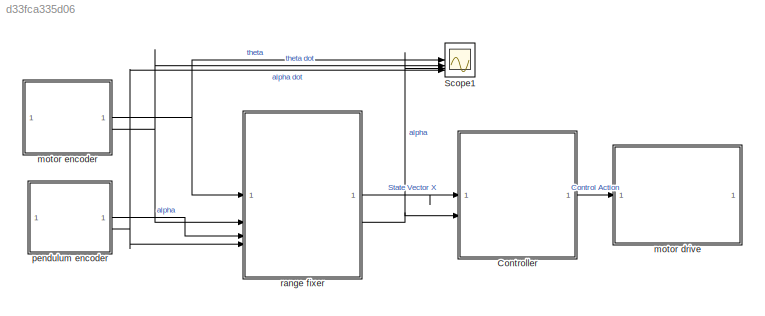
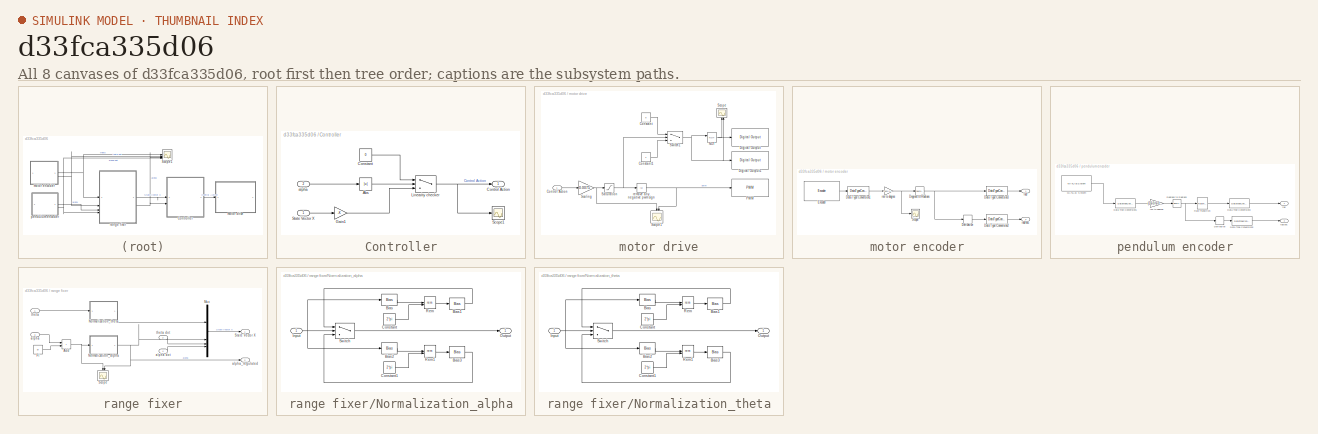
[diagram: thumbnail index - all 8 canvases of the model, root first then tree order]
MODEL slx_d33fca335d06
KIND model
CONFIG AbsTol = auto
CONFIG EnableMultiTasking = on
CONFIG FixedStep = 0.01
CONFIG MaxStep = auto
CONFIG MinStep = auto
CONFIG RelTol = 1e-3
CONFIG SampleTimeConstraint = Unconstrained
CONFIG SolverName = ode3
CONFIG StartTime = 0.0
CONFIG StopTime = inf
BLOCK [SubSystem] Controller
BLOCK [Abs] Controller/Abs
  SaturateOnIntegerOverflow = off
BLOCK [Constant] Controller/Constant
  Value = 0
BLOCK [Outport] Controller/Control Action 
BLOCK [Gain] Controller/Gain1
  Gain = -K
  Multiplication = Matrix(K*u)
BLOCK [Switch] Controller/Linearity checker
  Criteria = u2 > Threshold
  InputSameDT = off
  SaturateOnIntegerOverflow = off
  Threshold = pi/7
BLOCK [Scope] Controller/Scope1
  Floating = off
  NumInputPorts = 1
  ScopeSpecificationString = Simulink.scopes.TimeScopeBlockCfg('CurrentConfiguration', extmgr.ConfigurationSet(extmgr.Configuration('Core','General UI',true),extmgr.Configuration('Core','Source UI',true),extmgr.Configuration('Sources','WiredSimulink',true,'DataLoggingVariableName','ScopeData2'),extmgr.Configuration('Visuals','Time Domain',true,'SerializedDisplays',{struct('MinYLimReal','-1.00000','MaxYLimReal','1.00000','YLab...<+1412ch>
BLOCK [Inport] Controller/State Vector X
BLOCK [Inport] Controller/alpha
  Port = 2
BLOCK [Scope] Scope1
  Floating = off
  NumInputPorts = 4
  ScopeSpecificationString = Simulink.scopes.TimeScopeBlockCfg('CurrentConfiguration', extmgr.ConfigurationSet(extmgr.Configuration('Core','General UI',true),extmgr.Configuration('Core','Source UI',true),extmgr.Configuration('Sources','WiredSimulink',true,'DataLoggingVariableName','ScopeData1'),extmgr.Configuration('Visuals','Time Domain',true,'SerializedDisplays',{struct('MinYLimReal','-4.80042','MaxYLimReal','-2.80042','YLa...<+3501ch>
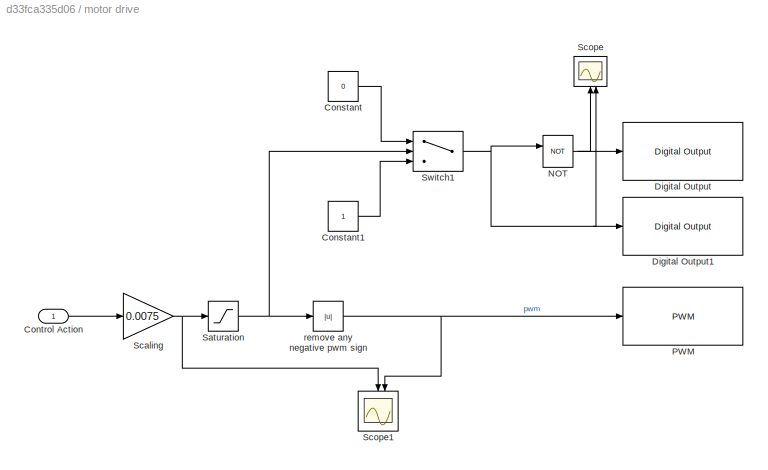
BLOCK [SubSystem] motor drive
BLOCK [Constant] motor drive/Constant
  Value = 0
BLOCK [Constant] motor drive/Constant1
BLOCK [Inport] motor drive/Control Action
BLOCK [Reference] motor drive/Digital Output  REF=arduinolib/Digital Output
  SourceBlock = arduinolib/Digital Output
  SourceType = Arduino Digital Output
BLOCK [Reference] motor drive/Digital Output1  REF=arduinolib/Digital Output
  SourceBlock = arduinolib/Digital Output
  SourceType = Arduino Digital Output
BLOCK [Logic] motor drive/NOT
  AllPortsSameDT = off
  IconShape = distinctive
  Operator = NOT
  OutDataTypeStr = boolean
BLOCK [Reference] motor drive/PWM  REF=arduinolib/PWM
  SourceBlock = arduinolib/PWM
  SourceType = Arduino PWM
BLOCK [Saturate] motor drive/Saturation
  LowerLimit = -255
  UpperLimit = 255
BLOCK [Gain] motor drive/Scaling
  Gain = 0.0075
BLOCK [Scope] motor drive/Scope
  Floating = off
  NameLocation = right
  NumInputPorts = 2
  ScopeSpecificationString = Simulink.scopes.TimeScopeBlockCfg('CurrentConfiguration', extmgr.ConfigurationSet(extmgr.Configuration('Core','General UI',true),extmgr.Configuration('Core','Source UI',true),extmgr.Configuration('Sources','WiredSimulink',true,'DataLoggingVariableName','ScopeData1'),extmgr.Configuration('Visuals','Time Domain',true,'SerializedDisplays',{struct('MinYLimReal','0.9','MaxYLimReal','1.1','YLabelReal','...<+2064ch>
BLOCK [Scope] motor drive/Scope1
  Floating = off
  NameLocation = left
  NumInputPorts = 2
  ScopeSpecificationString = Simulink.scopes.TimeScopeBlockCfg('CurrentConfiguration', extmgr.ConfigurationSet(extmgr.Configuration('Core','General UI',true),extmgr.Configuration('Core','Source UI',true),extmgr.Configuration('Sources','WiredSimulink',true,'DataLoggingVariableName','ScopeData2'),extmgr.Configuration('Visuals','Time Domain',true,'SerializedDisplays',{struct('MinYLimReal','-24161.92554','MaxYLimReal','24449.2243...<+2209ch>
BLOCK [Switch] motor drive/Switch1
  InputSameDT = off
  SaturateOnIntegerOverflow = off
BLOCK [Abs] motor drive/remove any negative pwm sign
  SaturateOnIntegerOverflow = off
BLOCK [SubSystem] motor encoder
BLOCK [DataTypeConversion] motor encoder/Data Type Conversion1
  OutDataTypeStr = double
  RndMeth = Floor
  SaturateOnIntegerOverflow = off
BLOCK [DataTypeConversion] motor encoder/Data Type Conversion2
  RndMeth = Floor
  SaturateOnIntegerOverflow = off
BLOCK [DataTypeConversion] motor encoder/Data Type Conversion3
  RndMeth = Floor
  SaturateOnIntegerOverflow = off
BLOCK [Reference] motor encoder/Degrees to Radians  REF=simulink_extras/Transformations/Degrees to
Radians
  SourceBlock = simulink_extras/Transformations/Degrees to\nRadians
  SourceType = DegreesToRadians
BLOCK [Derivative] motor encoder/Derivative
BLOCK [Reference] motor encoder/Encoder  REF=arduinosensorlib/Encoder
  SourceBlock = arduinosensorlib/Encoder
  SourceType = Arduino Rotary Encoder
BLOCK [Scope] motor encoder/Scope
  Floating = off
  NumInputPorts = 1
  ScopeSpecificationString = Simulink.scopes.TimeScopeBlockCfg('CurrentConfiguration', extmgr.ConfigurationSet(extmgr.Configuration('Core','General UI',true),extmgr.Configuration('Core','Source UI',true),extmgr.Configuration('Sources','WiredSimulink',true,'DataLoggingVariableName','ScopeData1'),extmgr.Configuration('Visuals','Time Domain',true,'SerializedDisplays',{struct('MinYLimReal','-137.85899','MaxYLimReal','-137.16167',...<+1444ch>
BLOCK [Outport] motor encoder/rad
BLOCK [Outport] motor encoder/rad//sec
  Port = 2
BLOCK [Gain] motor encoder/rev to degree
  Gain = (360/(11*4))/gear_box_ratio
BLOCK [SubSystem] pendulum encoder
BLOCK [DataTypeConversion] pendulum encoder/Data Type Conversion1
  OutDataTypeStr = double
  RndMeth = Floor
  SaturateOnIntegerOverflow = off
BLOCK [DataTypeConversion] pendulum encoder/Data Type Conversion2
  RndMeth = Floor
  SaturateOnIntegerOverflow = off
BLOCK [DataTypeConversion] pendulum encoder/Data Type Conversion3
  RndMeth = Floor
  SaturateOnIntegerOverflow = off
BLOCK [Reference] pendulum encoder/Degrees to Radians  REF=simulink_extras/Transformations/Degrees to
Radians
  SourceBlock = simulink_extras/Transformations/Degrees to\nRadians
  SourceType = DegreesToRadians
BLOCK [Derivative] pendulum encoder/Derivative
BLOCK [MATLABSystem] pendulum encoder/MATLAB System
  Encoder = 0
  MaskDisplay = disp('Encoder');\nport_label('output',1,'y');
  MaskType = Encoder_arduino
  PinA = 18
  PinB = 19
  SampleTime = 0.01
  System = Encoder_arduino
BLOCK [RateTransition] pendulum encoder/Rate Transition
BLOCK [Outport] pendulum encoder/rad
BLOCK [Outport] pendulum encoder/rad//sec
  Port = 2
BLOCK [Gain] pendulum encoder/rev to degree
  Gain = (360/600)/4
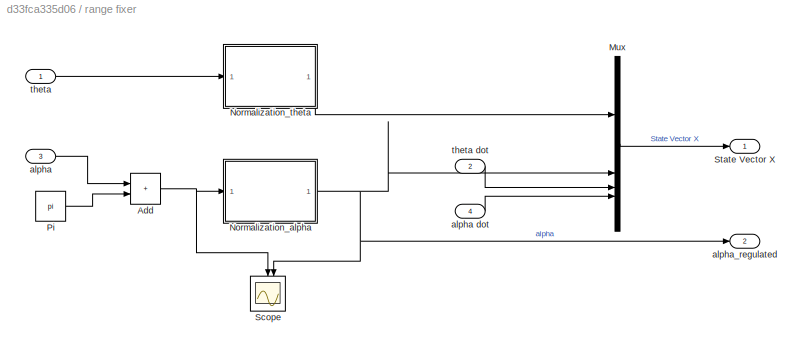
BLOCK [SubSystem] range fixer
BLOCK [Sum] range fixer/Add
  IconShape = rectangular
BLOCK [Mux] range fixer/Mux
  DisplayOption = bar
BLOCK [SubSystem] range fixer/Normalization_alpha
BLOCK [Bias] range fixer/Normalization_alpha/Bias
  Bias = pi
  SaturateOnIntegerOverflow = off
BLOCK [Bias] range fixer/Normalization_alpha/Bias1
  Bias = -pi
  SaturateOnIntegerOverflow = off
BLOCK [Bias] range fixer/Normalization_alpha/Bias2
  Bias = -pi
  SaturateOnIntegerOverflow = off
BLOCK [Bias] range fixer/Normalization_alpha/Bias3
  Bias = +pi
  SaturateOnIntegerOverflow = off
BLOCK [Constant] range fixer/Normalization_alpha/Constant
  Value = 2*pi
BLOCK [Constant] range fixer/Normalization_alpha/Constant1
  Value = 2*pi
BLOCK [Inport] range fixer/Normalization_alpha/Input
BLOCK [Outport] range fixer/Normalization_alpha/Output
BLOCK [Math] range fixer/Normalization_alpha/Rem
  Operator = rem
  SignedPower = on
BLOCK [Math] range fixer/Normalization_alpha/Rem1
  Operator = rem
  SignedPower = on
BLOCK [Switch] range fixer/Normalization_alpha/Switch
  Criteria = u2 > Threshold
  InputSameDT = off
  SaturateOnIntegerOverflow = off
BLOCK [SubSystem] range fixer/Normalization_theta
BLOCK [Bias] range fixer/Normalization_theta/Bias
  Bias = pi
  SaturateOnIntegerOverflow = off
BLOCK [Bias] range fixer/Normalization_theta/Bias1
  Bias = -pi
  SaturateOnIntegerOverflow = off
BLOCK [Bias] range fixer/Normalization_theta/Bias2
  Bias = -pi
  SaturateOnIntegerOverflow = off
BLOCK [Bias] range fixer/Normalization_theta/Bias3
  Bias = +pi
  SaturateOnIntegerOverflow = off
BLOCK [Constant] range fixer/Normalization_theta/Constant
  Value = 2*pi
BLOCK [Constant] range fixer/Normalization_theta/Constant1
  Value = 2*pi
BLOCK [Inport] range fixer/Normalization_theta/Input
BLOCK [Outport] range fixer/Normalization_theta/Output
BLOCK [Math] range fixer/Normalization_theta/Rem
  Operator = rem
  SignedPower = on
BLOCK [Math] range fixer/Normalization_theta/Rem1
  Operator = rem
  SignedPower = on
BLOCK [Switch] range fixer/Normalization_theta/Switch
  Criteria = u2 > Threshold
  InputSameDT = off
  SaturateOnIntegerOverflow = off
BLOCK [Constant] range fixer/Pi
  OutDataTypeStr = Inherit: Inherit via back propagation
  Value = pi
BLOCK [Scope] range fixer/Scope
  Floating = off
  NameLocation = right
  NumInputPorts = 2
  ScopeSpecificationString = Simulink.scopes.TimeScopeBlockCfg('CurrentConfiguration', extmgr.ConfigurationSet(extmgr.Configuration('Core','General UI',true),extmgr.Configuration('Core','Source UI',true),extmgr.Configuration('Sources','WiredSimulink',true),extmgr.Configuration('Visuals','Time Domain',true,'SerializedDisplays',{struct('MinYLimReal','3.03851','MaxYLimReal','3.10069','YLabelReal','','MinYLimMag','3.03851','MaxYL...<+1950ch>
BLOCK [Outport] range fixer/State Vector X
BLOCK [Inport] range fixer/alpha
  Port = 3
BLOCK [Inport] range fixer/alpha dot
  Port = 4
BLOCK [Outport] range fixer/alpha_regulated 
  Port = 2
BLOCK [Inport] range fixer/theta
BLOCK [Inport] range fixer/theta dot
  Port = 2
LINE Controller/Abs:1 -> Controller/Linearity checker:2
LINE Controller/Constant:1 -> Controller/Linearity checker:1
LINE Controller/Gain1:1 -> Controller/Linearity checker:3
NET Controller/Linearity checker:1 -> Controller/Control Action :1, Controller/Scope1:1
LINE Controller/State Vector X:1 -> Controller/Gain1:1
LINE Controller/alpha:1 -> Controller/Abs:1
LINE Controller:1 -> motor drive:1
LINE motor drive/Constant1:1 -> motor drive/Switch1:3
LINE motor drive/Constant:1 -> motor drive/Switch1:1
LINE motor drive/Control Action:1 -> motor drive/Scaling:1
NET motor drive/NOT:1 -> motor drive/Digital Output:1, motor drive/Scope:1
NET motor drive/Saturation:1 -> motor drive/Switch1:2, motor drive/remove any negative pwm sign:1
NET motor drive/Scaling:1 -> motor drive/Saturation:1, motor drive/Scope1:1
NET motor drive/Switch1:1 -> motor drive/Digital Output1:1, motor drive/NOT:1, motor drive/Scope:2
NET motor drive/remove any negative pwm sign:1 -> motor drive/PWM:1, motor drive/Scope1:2
LINE motor encoder/Data Type Conversion1:1 -> motor encoder/rev to degree:1
LINE motor encoder/Data Type Conversion2:1 -> motor encoder/rad//sec:1
LINE motor encoder/Data Type Conversion3:1 -> motor encoder/rad:1
NET motor encoder/Degrees to Radians:1 -> motor encoder/Data Type Conversion3:1, motor encoder/Derivative:1
LINE motor encoder/Derivative:1 -> motor encoder/Data Type Conversion2:1
LINE motor encoder/Encoder:1 -> motor encoder/Data Type Conversion1:1
NET motor encoder/rev to degree:1 -> motor encoder/Degrees to Radians:1, motor encoder/Scope:1
NET motor encoder:1 -> Scope1:1, range fixer:1
NET motor encoder:2 -> Scope1:2, range fixer:2
LINE pendulum encoder/Data Type Conversion1:1 -> pendulum encoder/rev to degree:1
LINE pendulum encoder/Data Type Conversion2:1 -> pendulum encoder/rad//sec:1
LINE pendulum encoder/Data Type Conversion3:1 -> pendulum encoder/rad:1
NET pendulum encoder/Degrees to Radians:1 -> pendulum encoder/Derivative:1, pendulum encoder/Rate Transition:1
LINE pendulum encoder/Derivative:1 -> pendulum encoder/Data Type Conversion2:1
LINE pendulum encoder/MATLAB System:1 -> pendulum encoder/Data Type Conversion1:1
LINE pendulum encoder/Rate Transition:1 -> pendulum encoder/Data Type Conversion3:1
LINE pendulum encoder/rev to degree:1 -> pendulum encoder/Degrees to Radians:1
LINE pendulum encoder:1 -> range fixer:3
NET pendulum encoder:2 -> Scope1:4, range fixer:4
NET range fixer/Add:1 -> range fixer/Normalization_alpha:1, range fixer/Scope:1
LINE range fixer/Mux:1 -> range fixer/State Vector X:1
LINE range fixer/Normalization_alpha/Bias1:1 -> range fixer/Normalization_alpha/Switch:1
LINE range fixer/Normalization_alpha/Bias2:1 -> range fixer/Normalization_alpha/Rem1:1
LINE range fixer/Normalization_alpha/Bias3:1 -> range fixer/Normalization_alpha/Switch:3
LINE range fixer/Normalization_alpha/Bias:1 -> range fixer/Normalization_alpha/Rem:1
LINE range fixer/Normalization_alpha/Constant1:1 -> range fixer/Normalization_alpha/Rem1:2
LINE range fixer/Normalization_alpha/Constant:1 -> range fixer/Normalization_alpha/Rem:2
NET range fixer/Normalization_alpha/Input:1 -> range fixer/Normalization_alpha/Bias2:1, range fixer/Normalization_alpha/Bias:1, range fixer/Normalization_alpha/Switch:2
LINE range fixer/Normalization_alpha/Rem1:1 -> range fixer/Normalization_alpha/Bias3:1
LINE range fixer/Normalization_alpha/Rem:1 -> range fixer/Normalization_alpha/Bias1:1
LINE range fixer/Normalization_alpha/Switch:1 -> range fixer/Normalization_alpha/Output:1
NET range fixer/Normalization_alpha:1 -> range fixer/Mux:2, range fixer/Scope:2, range fixer/alpha_regulated :1
LINE range fixer/Normalization_theta/Bias1:1 -> range fixer/Normalization_theta/Switch:1
LINE range fixer/Normalization_theta/Bias2:1 -> range fixer/Normalization_theta/Rem1:1
LINE range fixer/Normalization_theta/Bias3:1 -> range fixer/Normalization_theta/Switch:3
LINE range fixer/Normalization_theta/Bias:1 -> range fixer/Normalization_theta/Rem:1
LINE range fixer/Normalization_theta/Constant1:1 -> range fixer/Normalization_theta/Rem1:2
LINE range fixer/Normalization_theta/Constant:1 -> range fixer/Normalization_theta/Rem:2
NET range fixer/Normalization_theta/Input:1 -> range fixer/Normalization_theta/Bias2:1, range fixer/Normalization_theta/Bias:1, range fixer/Normalization_theta/Switch:2
LINE range fixer/Normalization_theta/Rem1:1 -> range fixer/Normalization_theta/Bias3:1
LINE range fixer/Normalization_theta/Rem:1 -> range fixer/Normalization_theta/Bias1:1
LINE range fixer/Normalization_theta/Switch:1 -> range fixer/Normalization_theta/Output:1
LINE range fixer/Normalization_theta:1 -> range fixer/Mux:1
LINE range fixer/Pi:1 -> range fixer/Add:2
LINE range fixer/alpha dot:1 -> range fixer/Mux:4
LINE range fixer/alpha:1 -> range fixer/Add:1
LINE range fixer/theta dot:1 -> range fixer/Mux:3
LINE range fixer/theta:1 -> range fixer/Normalization_theta:1
LINE range fixer:1 -> Controller:1
NET range fixer:2 -> Controller:2, Scope1:3
note: NET lines group one-source signal fan-out (src -> all destinations, sorted); 1:1 wires keep LINE
